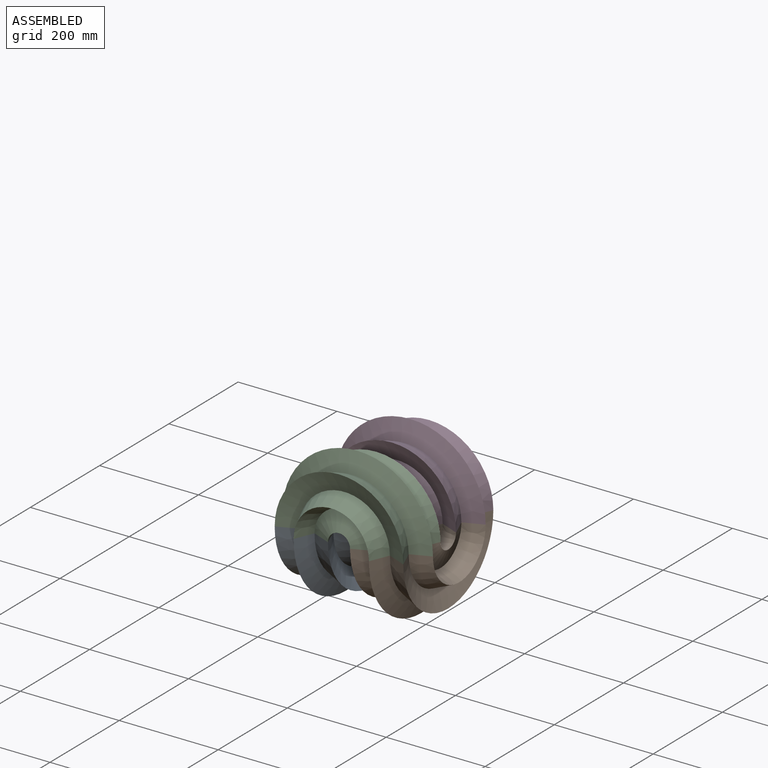
[diagram: assembled view]
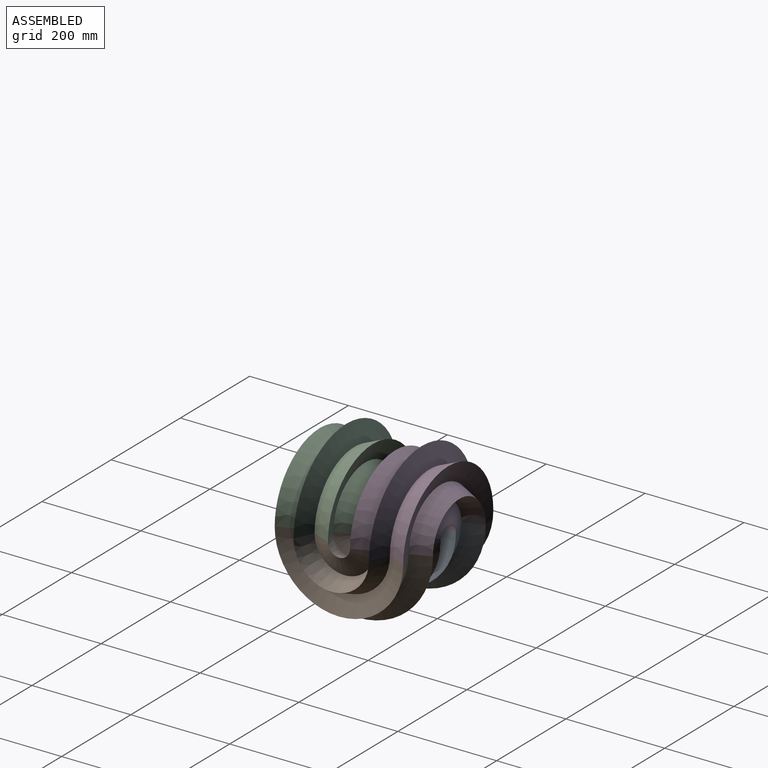
[diagram: assembled view, second angle]
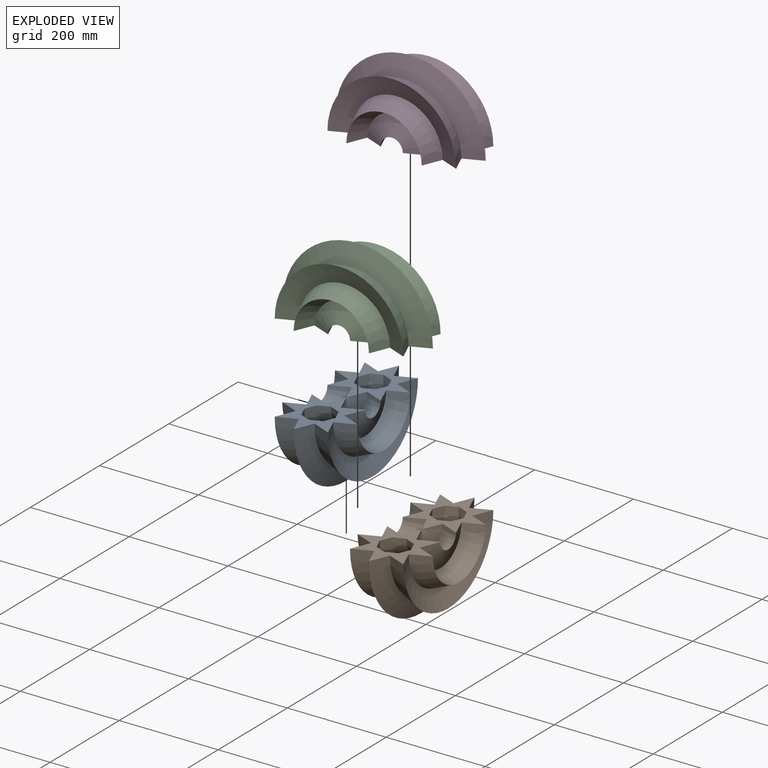
[diagram: exploded view]
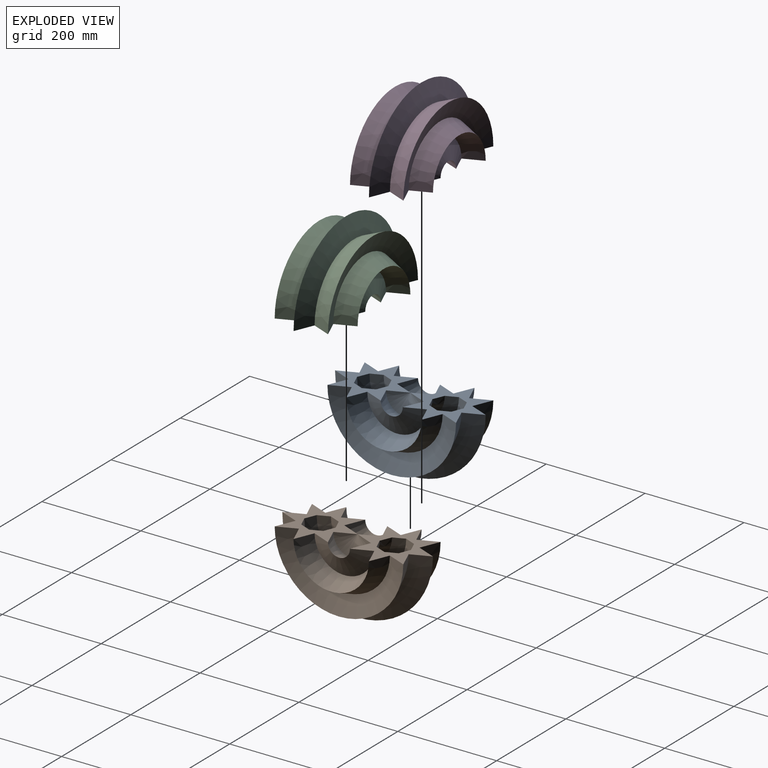
[diagram: exploded view, second angle]
ASSEMBLY  parts=4 mates=3
PART A: 26 faces, bbox 304.8x152.4x152.4 mm
  f0: cone r=91.98mm half-angle=22.5deg, axis (0,-1,0), area 10894.5mm2, adj f1,f15,f16,f17
  f1: cone r=76.2mm half-angle=22.5deg, axis (0,1,0), area 8849.9mm2, adj f0,f2,f16,f17
  f2: cone r=60.42mm half-angle=67.5deg, axis (0,-1,0), area 5359.6mm2, adj f1,f3,f16,f17
  f3: cone r=22.32mm half-angle=22.5deg, axis (0,-1,0), area 3913.8mm2, adj f2,f4,f16,f17
  f4: cone r=38.1mm half-angle=67.5deg, axis (0,1,0), area 2468.1mm2, adj f3,f16,f17
  f5: cone r=0mm half-angle=67.5deg, axis (0,-1,0), area 2468.1mm2, adj f6,f16,f17
  f6: cone r=38.1mm half-angle=22.5deg, axis (0,1,0), area 3913.8mm2, adj f5,f7,f16,f17
  f7: cone r=22.32mm half-angle=67.5deg, axis (0,1,0), area 5359.6mm2, adj f6,f8,f16,f17
  f8: cone r=60.42mm half-angle=22.5deg, axis (0,-1,0), area 8849.9mm2, adj f7,f9,f16,f17
  f9: cone r=76.2mm half-angle=22.5deg, axis (0,1,0), area 10894.5mm2, adj f8,f10,f16,f17
  f10: cone r=91.98mm half-angle=67.5deg, axis (0,-1,0), area 14384.9mm2, adj f9,f11,f16,f17
  f11: cone r=130.08mm half-angle=22.5deg, axis (0,-1,0), area 15830.6mm2, adj f10,f12,f16,f17
  f12: cone r=114.3mm half-angle=67.5deg, axis (0,1,0), area 17276.4mm2, adj f11,f13,f16,f17
  f13: cone r=152.4mm half-angle=67.5deg, axis (0,-1,0), area 17276.4mm2, adj f12,f14,f16,f17
  f14: cone r=114.3mm half-angle=22.5deg, axis (0,1,0), area 15830.6mm2, adj f13,f15,f16,f17
  f15: cone r=130.08mm half-angle=67.5deg, axis (0,1,0), area 14384.9mm2, adj f0,f14,f16,f17
  f16: plane 152.4x152.4mm, normal (0,0,1), area 6802.7mm2, adj f0,f1,f2,f3,f4,f5,f6,f7
  f17: plane 152.4x152.4mm, normal (0,0,1), area 6802.7mm2, adj f0,f1,f2,f3,f4,f5,f6,f7
  f18: cone r=98.52mm half-angle=22.5deg, axis (0,-1,0), area 7827.6mm2, adj f16,f17,f19,f25
  f19: cone r=107.76mm half-angle=22.5deg, axis (0,1,0), area 7827.6mm2, adj f16,f17,f18,f20
  f20: cone r=98.52mm half-angle=67.5deg, axis (0,1,0), area 6629.9mm2, adj f16,f17,f19,f21
  f21: cone r=76.2mm half-angle=67.5deg, axis (0,-1,0), area 4936.1mm2, adj f16,f17,f20,f22
  f22: cone r=53.88mm half-angle=22.5deg, axis (0,-1,0), area 3738.4mm2, adj f16,f17,f21,f23
  f23: cone r=44.64mm half-angle=22.5deg, axis (0,1,0), area 3738.4mm2, adj f16,f17,f22,f24
  f24: cone r=53.88mm half-angle=67.5deg, axis (0,1,0), area 4936.1mm2, adj f16,f17,f23,f25
  f25: cone r=76.2mm half-angle=67.5deg, axis (0,-1,0), area 6629.9mm2, adj f16,f17,f18,f24
PART B: same geometry as A
PART C: 26 faces, bbox 304.8x152.4x152.4 mm
  f0: cone r=91.98mm half-angle=22.5deg, axis (0,-1,0), area 10894.5mm2, adj f1,f15,f16,f17
  f1: cone r=76.2mm half-angle=22.5deg, axis (0,1,0), area 8849.9mm2, adj f0,f2,f16,f17
  f2: cone r=60.42mm half-angle=67.5deg, axis (0,-1,0), area 5359.6mm2, adj f1,f3,f16,f17
  f3: cone r=22.32mm half-angle=22.5deg, axis (0,-1,0), area 3913.8mm2, adj f2,f4,f16,f17
  f4: cone r=38.1mm half-angle=67.5deg, axis (0,1,0), area 2468.1mm2, adj f3,f16,f17
  f5: cone r=0mm half-angle=67.5deg, axis (0,-1,0), area 2468.1mm2, adj f6,f16,f17
  f6: cone r=38.1mm half-angle=22.5deg, axis (0,1,0), area 3913.8mm2, adj f5,f7,f16,f17
  f7: cone r=22.32mm half-angle=67.5deg, axis (0,1,0), area 5359.6mm2, adj f6,f8,f16,f17
  f8: cone r=60.42mm half-angle=22.5deg, axis (0,-1,0), area 8849.9mm2, adj f7,f9,f16,f17
  f9: cone r=76.2mm half-angle=22.5deg, axis (0,1,0), area 10894.5mm2, adj f8,f10,f16,f17
  f10: cone r=91.98mm half-angle=67.5deg, axis (0,-1,0), area 14384.9mm2, adj f9,f11,f16,f17
  f11: cone r=130.08mm half-angle=22.5deg, axis (0,-1,0), area 15830.6mm2, adj f10,f12,f16,f17
  f12: cone r=114.3mm half-angle=67.5deg, axis (0,1,0), area 17276.4mm2, adj f11,f13,f16,f17
  f13: cone r=152.4mm half-angle=67.5deg, axis (0,-1,0), area 17276.4mm2, adj f12,f14,f16,f17
  f14: cone r=114.3mm half-angle=22.5deg, axis (0,1,0), area 15830.6mm2, adj f13,f15,f16,f17
  f15: cone r=130.08mm half-angle=67.5deg, axis (0,1,0), area 14384.9mm2, adj f0,f14,f16,f17
  f16: plane 152.4x152.4mm, normal (0,0,-1), area 6802.7mm2, adj f0,f1,f2,f3,f4,f5,f6,f7
  f17: plane 152.4x152.4mm, normal (0,0,-1), area 6802.7mm2, adj f0,f1,f2,f3,f4,f5,f6,f7
  f18: cone r=98.52mm half-angle=22.5deg, axis (0,-1,0), area 7827.6mm2, adj f16,f17,f19,f25
  f19: cone r=107.76mm half-angle=22.5deg, axis (0,1,0), area 7827.6mm2, adj f16,f17,f18,f20
  f20: cone r=98.52mm half-angle=67.5deg, axis (0,1,0), area 6629.9mm2, adj f16,f17,f19,f21
  f21: cone r=76.2mm half-angle=67.5deg, axis (0,-1,0), area 4936.1mm2, adj f16,f17,f20,f22
  f22: cone r=53.88mm half-angle=22.5deg, axis (0,-1,0), area 3738.4mm2, adj f16,f17,f21,f23
  f23: cone r=44.64mm half-angle=22.5deg, axis (0,1,0), area 3738.4mm2, adj f16,f17,f22,f24
  f24: cone r=53.88mm half-angle=67.5deg, axis (0,1,0), area 4936.1mm2, adj f16,f17,f23,f25
  f25: cone r=76.2mm half-angle=67.5deg, axis (0,-1,0), area 6629.9mm2, adj f16,f17,f18,f24
PART D: same geometry as C
PLACE A rot(axis=(0,0,-1),90deg) t=(-360.08,-362.72,150.27)mm
PLACE B rot(axis=(0,0,1),90deg) t=(-207.68,-210.32,150.27)mm
PLACE C rot(axis=(0,0,1),180deg) t=(-360.08,-362.72,149.76)mm
PLACE D t=(-207.68,-210.32,149.76)mm
MATE fastened C.f16 <-> A.f16  axis (0,0,-1) through (-360.08,-362.72,149.76)mm
MATE fastened D.f17 <-> A.f17  axis (0,0,-1) through (-360.08,-210.32,149.76)mm
MATE fastened D.f16 <-> B.f16  axis (0,0,-1) through (-207.68,-210.32,149.76)mm
